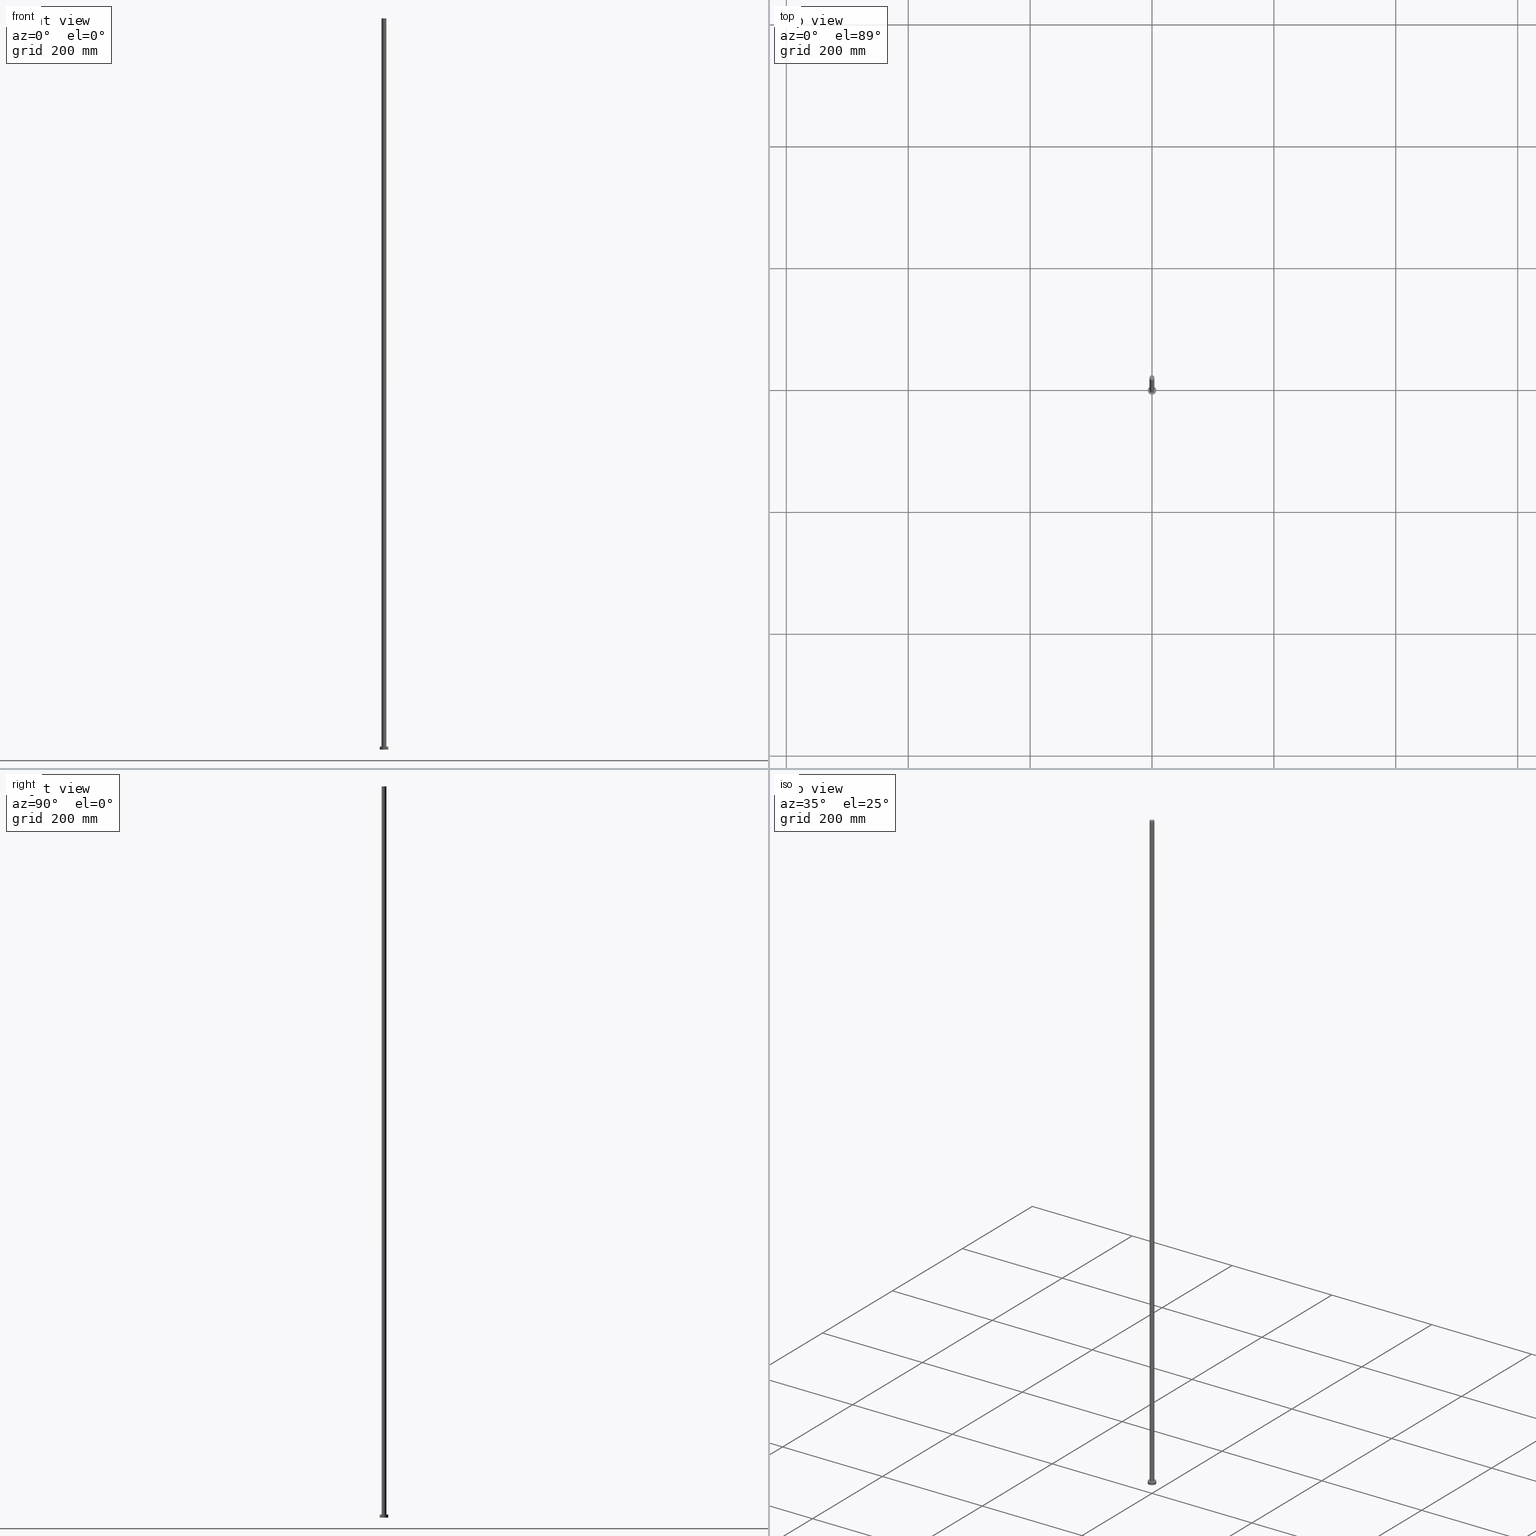
[diagram: canonical four-view strip — front | top / right | iso, engineering-drawing reading convention]
A machine part, canonical four-view strip (front | top / right | iso — engineering-drawing reading convention). The complete STEP part file that produces these views, byte-faithful:
ISO-10303-21;
HEADER;
FILE_DESCRIPTION (( 'STEP AP203' ),
    '1' );
FILE_NAME ('018f.STEP',
    '2023-02-12T11:47:13',
    ( '' ),
    ( '' ),
    'SwSTEP 2.0',
    'SolidWorks 2019',
    '' );
FILE_SCHEMA (( 'CONFIG_CONTROL_DESIGN' ));
ENDSEC;

DATA;
#1 = VERTEX_POINT ( 'NONE', #146 ) ;
#2 = CYLINDRICAL_SURFACE ( 'NONE', #151, 4.000000000000000000 ) ;
#3 = VECTOR ( 'NONE', #177, 1000.000000000000000 ) ;
#4 = CARTESIAN_POINT ( 'NONE',  ( 4.000000000000000000, 4.898587196589412829E-16, 1200.000000000000000 ) ) ;
#5 = CARTESIAN_POINT ( 'NONE',  ( 0.000000000000000000, 0.000000000000000000, 1200.000000000000000 ) ) ;
#6 = CARTESIAN_POINT ( 'NONE',  ( -7.000000000000000000, 0.000000000000000000, 0.000000000000000000 ) ) ;
#7 = ORGANIZATION ( 'NEUR�EN�', 'NEUR�EN�', '' ) ;
#8 = AXIS2_PLACEMENT_3D ( 'NONE', #161, #30, #28 ) ;
#9 = CARTESIAN_POINT ( 'NONE',  ( 0.000000000000000000, 0.000000000000000000, 5.000000000000000000 ) ) ;
#10 = FACE_OUTER_BOUND ( 'NONE', #104, .T. ) ;
#11 = ORIENTED_EDGE ( 'NONE', *, *, #45, .F. ) ;
#12 = CIRCLE ( 'NONE', #93, 4.000000000000000000 ) ;
#13 =( NAMED_UNIT ( * ) PLANE_ANGLE_UNIT ( ) SI_UNIT ( $, .RADIAN. ) );
#14 = EDGE_CURVE ( 'NONE', #201, #118, #83, .T. ) ;
#15 = DATE_TIME_ROLE ( 'creation_date' ) ;
#16 = AXIS2_PLACEMENT_3D ( 'NONE', #159, #199, #124 ) ;
#17 = DATE_AND_TIME ( #207, #35 ) ;
#18 = ORIENTED_EDGE ( 'NONE', *, *, #250, .T. ) ;
#19 = PERSON_AND_ORGANIZATION ( #127, #7 ) ;
#20 = VERTEX_POINT ( 'NONE', #237 ) ;
#21 = CC_DESIGN_SECURITY_CLASSIFICATION ( #60, ( #248 ) ) ;
#22 = PERSON_AND_ORGANIZATION_ROLE ( 'creator' ) ;
#23 = ORIENTED_EDGE ( 'NONE', *, *, #214, .T. ) ;
#24 = APPLICATION_CONTEXT ( 'configuration controlled 3d designs of mechanical parts and assemblies' ) ;
#25 = EDGE_CURVE ( 'NONE', #132, #90, #239, .T. ) ;
#26 = CARTESIAN_POINT ( 'NONE',  ( -7.000000000000000000, 0.000000000000000000, 5.000000000000000000 ) ) ;
#27 = EDGE_CURVE ( 'NONE', #20, #132, #115, .T. ) ;
#28 = DIRECTION ( 'NONE',  ( 1.000000000000000000, 0.000000000000000000, 0.000000000000000000 ) ) ;
#29 = DIRECTION ( 'NONE',  ( 0.000000000000000000, 0.000000000000000000, 1.000000000000000000 ) ) ;
#30 = DIRECTION ( 'NONE',  ( 0.000000000000000000, 0.000000000000000000, 1.000000000000000000 ) ) ;
#31 = DIRECTION ( 'NONE',  ( 1.000000000000000000, 0.000000000000000000, 0.000000000000000000 ) ) ;
#32 =( LENGTH_UNIT ( ) NAMED_UNIT ( * ) SI_UNIT ( .MILLI., .METRE. ) );
#33 = CARTESIAN_POINT ( 'NONE',  ( 0.000000000000000000, 0.000000000000000000, 5.000000000000000000 ) ) ;
#34 = ORIENTED_EDGE ( 'NONE', *, *, #184, .F. ) ;
#35 = LOCAL_TIME ( 12, 47, 13.00000000000000000, #131 ) ;
#36 = DIRECTION ( 'NONE',  ( 0.000000000000000000, 0.000000000000000000, 1.000000000000000000 ) ) ;
#37 = EDGE_CURVE ( 'NONE', #231, #201, #106, .T. ) ;
#38 = AXIS2_PLACEMENT_3D ( 'NONE', #138, #171, #154 ) ;
#39 = EDGE_LOOP ( 'NONE', ( #34, #233, #134, #228 ) ) ;
#40 = COORDINATED_UNIVERSAL_TIME_OFFSET ( 1, 0, .AHEAD. ) ;
#41 = DESIGN_CONTEXT ( 'detailed design', #24, 'design' ) ;
#42 = APPROVAL ( #133, 'NEUR�EN�' ) ;
#43 = FACE_OUTER_BOUND ( 'NONE', #128, .T. ) ;
#44 = FACE_OUTER_BOUND ( 'NONE', #168, .T. ) ;
#45 = EDGE_CURVE ( 'NONE', #118, #201, #165, .T. ) ;
#46 = CARTESIAN_POINT ( 'NONE',  ( -4.000000000000000000, 0.000000000000000000, 5.000000000000000000 ) ) ;
#47 = DIRECTION ( 'NONE',  ( -1.000000000000000000, 0.000000000000000000, 0.000000000000000000 ) ) ;
#48 = ORIENTED_EDGE ( 'NONE', *, *, #25, .T. ) ;
#49 =( GEOMETRIC_REPRESENTATION_CONTEXT ( 3 ) GLOBAL_UNCERTAINTY_ASSIGNED_CONTEXT ( ( #139 ) ) GLOBAL_UNIT_ASSIGNED_CONTEXT ( ( #32, #13, #108 ) ) REPRESENTATION_CONTEXT ( 'NONE', 'WORKASPACE' ) );
#50 = CARTESIAN_POINT ( 'NONE',  ( 7.000000000000000000, 8.572527594031473190E-16, 5.000000000000000000 ) ) ;
#51 = DIRECTION ( 'NONE',  ( 1.000000000000000000, 0.000000000000000000, 0.000000000000000000 ) ) ;
#52 = ORIENTED_EDGE ( 'NONE', *, *, #27, .T. ) ;
#53 = VERTEX_POINT ( 'NONE', #46 ) ;
#54 = CYLINDRICAL_SURFACE ( 'NONE', #198, 7.000000000000000000 ) ;
#55 = APPROVAL_ROLE ( '' ) ;
#56 = CALENDAR_DATE ( 2023, 12, 2 ) ;
#57 = APPROVAL_ROLE ( '' ) ;
#58 = PERSON_AND_ORGANIZATION ( #127, #7 ) ;
#59 = ORIENTED_EDGE ( 'NONE', *, *, #27, .F. ) ;
#60 = SECURITY_CLASSIFICATION ( '', '', #157 ) ;
#61 = DIRECTION ( 'NONE',  ( -0.000000000000000000, -0.000000000000000000, -1.000000000000000000 ) ) ;
#62 = DIRECTION ( 'NONE',  ( 0.000000000000000000, 0.000000000000000000, 1.000000000000000000 ) ) ;
#63 = CARTESIAN_POINT ( 'NONE',  ( 7.000000000000000000, 8.572527594031473190E-16, 5.000000000000000000 ) ) ;
#64 = VECTOR ( 'NONE', #120, 1000.000000000000000 ) ;
#65 = AXIS2_PLACEMENT_3D ( 'NONE', #197, #29, #149 ) ;
#66 = DIRECTION ( 'NONE',  ( 0.000000000000000000, 0.000000000000000000, 1.000000000000000000 ) ) ;
#67 = CARTESIAN_POINT ( 'NONE',  ( 0.000000000000000000, 0.000000000000000000, 0.000000000000000000 ) ) ;
#68 = CLOSED_SHELL ( 'NONE', ( #123, #203, #162, #71, #119, #81, #229 ) ) ;
#69 = DIRECTION ( 'NONE',  ( -1.000000000000000000, 0.000000000000000000, 0.000000000000000000 ) ) ;
#70 = ORIENTED_EDGE ( 'NONE', *, *, #145, .T. ) ;
#71 = ADVANCED_FACE ( 'NONE', ( #103, #182 ), #102, .T. ) ;
#72 = AXIS2_PLACEMENT_3D ( 'NONE', #241, #101, #147 ) ;
#73 = CIRCLE ( 'NONE', #135, 4.000000000000000000 ) ;
#74 = SHAPE_DEFINITION_REPRESENTATION ( #208, #181 ) ;
#75 = ORIENTED_EDGE ( 'NONE', *, *, #145, .F. ) ;
#76 = ORIENTED_EDGE ( 'NONE', *, *, #169, .T. ) ;
#77 = APPROVAL_PERSON_ORGANIZATION ( #19, #42, #57 ) ;
#78 = APPROVAL_DATE_TIME ( #255, #42 ) ;
#79 = CC_DESIGN_PERSON_AND_ORGANIZATION_ASSIGNMENT ( #190, #194, ( #252 ) ) ;
#80 = CALENDAR_DATE ( 2023, 12, 2 ) ;
#81 = ADVANCED_FACE ( 'NONE', ( #44 ), #217, .T. ) ;
#82 = DIRECTION ( 'NONE',  ( -0.000000000000000000, -0.000000000000000000, -1.000000000000000000 ) ) ;
#83 = CIRCLE ( 'NONE', #191, 7.000000000000000000 ) ;
#84 = LOCAL_TIME ( 12, 47, 13.00000000000000000, #98 ) ;
#85 = DIRECTION ( 'NONE',  ( 1.000000000000000000, 0.000000000000000000, 0.000000000000000000 ) ) ;
#86 = PLANE ( 'NONE',  #216 ) ;
#87 = CARTESIAN_POINT ( 'NONE',  ( 4.000000000000000000, 4.898587196589412829E-16, 5.000000000000000000 ) ) ;
#88 = APPROVAL ( #117, 'NEUR�EN�' ) ;
#89 = CIRCLE ( 'NONE', #225, 7.000000000000000000 ) ;
#90 = VERTEX_POINT ( 'NONE', #87 ) ;
#91 = PLANE ( 'NONE',  #107 ) ;
#92 = APPROVAL_DATE_TIME ( #17, #224 ) ;
#93 = AXIS2_PLACEMENT_3D ( 'NONE', #246, #112, #31 ) ;
#94 = CC_DESIGN_PERSON_AND_ORGANIZATION_ASSIGNMENT ( #174, #209, ( #248 ) ) ;
#95 = DATE_AND_TIME ( #80, #254 ) ;
#96 = PERSON_AND_ORGANIZATION ( #127, #7 ) ;
#97 = EDGE_LOOP ( 'NONE', ( #227, #48, #23, #75 ) ) ;
#98 = COORDINATED_UNIVERSAL_TIME_OFFSET ( 1, 0, .AHEAD. ) ;
#99 = EDGE_CURVE ( 'NONE', #1, #118, #220, .T. ) ;
#100 = COORDINATED_UNIVERSAL_TIME_OFFSET ( 1, 0, .AHEAD. ) ;
#101 = DIRECTION ( 'NONE',  ( 0.000000000000000000, 0.000000000000000000, 1.000000000000000000 ) ) ;
#102 = PLANE ( 'NONE',  #236 ) ;
#103 = FACE_BOUND ( 'NONE', #253, .T. ) ;
#104 = EDGE_LOOP ( 'NONE', ( #52, #18 ) ) ;
#105 = CC_DESIGN_DATE_AND_TIME_ASSIGNMENT ( #113, #15, ( #150 ) ) ;
#106 = LINE ( 'NONE', #63, #240 ) ;
#107 = AXIS2_PLACEMENT_3D ( 'NONE', #188, #130, #202 ) ;
#108 =( NAMED_UNIT ( * ) SI_UNIT ( $, .STERADIAN. ) SOLID_ANGLE_UNIT ( ) );
#109 = ORIENTED_EDGE ( 'NONE', *, *, #37, .F. ) ;
#110 = CARTESIAN_POINT ( 'NONE',  ( 7.000000000000000000, 8.572527594031473190E-16, 0.000000000000000000 ) ) ;
#111 = CC_DESIGN_APPROVAL ( #42, ( #248 ) ) ;
#112 = DIRECTION ( 'NONE',  ( 0.000000000000000000, 0.000000000000000000, 1.000000000000000000 ) ) ;
#113 = DATE_AND_TIME ( #56, #167 ) ;
#114 = CC_DESIGN_DATE_AND_TIME_ASSIGNMENT ( #95, #172, ( #60 ) ) ;
#115 = CIRCLE ( 'NONE', #72, 4.000000000000000000 ) ;
#116 = EDGE_LOOP ( 'NONE', ( #109, #140, #148, #126 ) ) ;
#117 = APPROVAL_STATUS ( 'not_yet_approved' ) ;
#118 = VERTEX_POINT ( 'NONE', #6 ) ;
#119 = ADVANCED_FACE ( 'NONE', ( #43 ), #86, .F. ) ;
#120 = DIRECTION ( 'NONE',  ( -0.000000000000000000, -0.000000000000000000, -1.000000000000000000 ) ) ;
#121 = DIRECTION ( 'NONE',  ( -1.000000000000000000, 0.000000000000000000, 0.000000000000000000 ) ) ;
#122 = DIRECTION ( 'NONE',  ( 1.000000000000000000, 0.000000000000000000, 0.000000000000000000 ) ) ;
#123 = ADVANCED_FACE ( 'NONE', ( #166 ), #2, .T. ) ;
#124 = DIRECTION ( 'NONE',  ( -1.000000000000000000, 0.000000000000000000, 0.000000000000000000 ) ) ;
#125 = PRODUCT_RELATED_PRODUCT_CATEGORY ( 'detail', '', ( #252 ) ) ;
#126 = ORIENTED_EDGE ( 'NONE', *, *, #45, .T. ) ;
#127 = PERSON ( 'NEUR�EN�', 'NEUR�EN�', 'NEUR�EN�', ('NEUR�EN�'), ('NEUR�EN�'), ('NEUR�EN�') ) ;
#128 = EDGE_LOOP ( 'NONE', ( #11, #247 ) ) ;
#129 = CC_DESIGN_APPROVAL ( #224, ( #60 ) ) ;
#130 = DIRECTION ( 'NONE',  ( 0.000000000000000000, 0.000000000000000000, 1.000000000000000000 ) ) ;
#131 = COORDINATED_UNIVERSAL_TIME_OFFSET ( 1, 0, .AHEAD. ) ;
#132 = VERTEX_POINT ( 'NONE', #4 ) ;
#133 = APPROVAL_STATUS ( 'not_yet_approved' ) ;
#134 = ORIENTED_EDGE ( 'NONE', *, *, #14, .T. ) ;
#135 = AXIS2_PLACEMENT_3D ( 'NONE', #33, #36, #185 ) ;
#136 = EDGE_LOOP ( 'NONE', ( #163, #186 ) ) ;
#137 = APPROVAL_DATE_TIME ( #195, #88 ) ;
#138 = CARTESIAN_POINT ( 'NONE',  ( 0.000000000000000000, 0.000000000000000000, 0.000000000000000000 ) ) ;
#139 = UNCERTAINTY_MEASURE_WITH_UNIT (LENGTH_MEASURE( 1.000000000000000082E-05 ), #32, 'distance_accuracy_value', 'NONE');
#140 = ORIENTED_EDGE ( 'NONE', *, *, #142, .F. ) ;
#141 = DIRECTION ( 'NONE',  ( 0.000000000000000000, 0.000000000000000000, 1.000000000000000000 ) ) ;
#142 = EDGE_CURVE ( 'NONE', #1, #231, #212, .T. ) ;
#143 = CARTESIAN_POINT ( 'NONE',  ( 0.000000000000000000, 0.000000000000000000, 5.000000000000000000 ) ) ;
#144 = CARTESIAN_POINT ( 'NONE',  ( 0.000000000000000000, 0.000000000000000000, 5.000000000000000000 ) ) ;
#145 = EDGE_CURVE ( 'NONE', #20, #53, #160, .T. ) ;
#146 = CARTESIAN_POINT ( 'NONE',  ( -7.000000000000000000, 0.000000000000000000, 5.000000000000000000 ) ) ;
#147 = DIRECTION ( 'NONE',  ( 1.000000000000000000, 0.000000000000000000, 0.000000000000000000 ) ) ;
#148 = ORIENTED_EDGE ( 'NONE', *, *, #99, .T. ) ;
#149 = DIRECTION ( 'NONE',  ( 1.000000000000000000, 0.000000000000000000, 0.000000000000000000 ) ) ;
#150 = PRODUCT_DEFINITION ( 'NEZN�M�', '', #248, #41 ) ;
#151 = AXIS2_PLACEMENT_3D ( 'NONE', #5, #82, #47 ) ;
#152 = MECHANICAL_CONTEXT ( 'NONE', #206, 'mechanical' ) ;
#153 = ORIENTED_EDGE ( 'NONE', *, *, #25, .F. ) ;
#154 = DIRECTION ( 'NONE',  ( 1.000000000000000000, 0.000000000000000000, 0.000000000000000000 ) ) ;
#155 = CC_DESIGN_PERSON_AND_ORGANIZATION_ASSIGNMENT ( #96, #22, ( #248 ) ) ;
#156 = CC_DESIGN_APPROVAL ( #88, ( #150 ) ) ;
#157 = SECURITY_CLASSIFICATION_LEVEL ( 'unclassified' ) ;
#158 = PERSON_AND_ORGANIZATION ( #127, #7 ) ;
#159 = CARTESIAN_POINT ( 'NONE',  ( 0.000000000000000000, 0.000000000000000000, 1200.000000000000000 ) ) ;
#160 = LINE ( 'NONE', #238, #243 ) ;
#161 = CARTESIAN_POINT ( 'NONE',  ( 0.000000000000000000, 0.000000000000000000, 0.000000000000000000 ) ) ;
#162 = ADVANCED_FACE ( 'NONE', ( #242 ), #213, .T. ) ;
#163 = ORIENTED_EDGE ( 'NONE', *, *, #142, .T. ) ;
#164 = APPROVAL_PERSON_ORGANIZATION ( #158, #224, #234 ) ;
#165 = CIRCLE ( 'NONE', #8, 7.000000000000000000 ) ;
#166 = FACE_OUTER_BOUND ( 'NONE', #97, .T. ) ;
#167 = LOCAL_TIME ( 12, 47, 13.00000000000000000, #100 ) ;
#168 = EDGE_LOOP ( 'NONE', ( #153, #59, #70, #76 ) ) ;
#169 = EDGE_CURVE ( 'NONE', #53, #90, #204, .T. ) ;
#170 = ORIENTED_EDGE ( 'NONE', *, *, #214, .F. ) ;
#171 = DIRECTION ( 'NONE',  ( 0.000000000000000000, 0.000000000000000000, 1.000000000000000000 ) ) ;
#172 = DATE_TIME_ROLE ( 'classification_date' ) ;
#173 = CC_DESIGN_PERSON_AND_ORGANIZATION_ASSIGNMENT ( #58, #192, ( #60 ) ) ;
#174 = PERSON_AND_ORGANIZATION ( #127, #7 ) ;
#175 = CALENDAR_DATE ( 2023, 12, 2 ) ;
#176 = COORDINATED_UNIVERSAL_TIME_OFFSET ( 1, 0, .AHEAD. ) ;
#177 = DIRECTION ( 'NONE',  ( -0.000000000000000000, -0.000000000000000000, -1.000000000000000000 ) ) ;
#178 = AXIS2_PLACEMENT_3D ( 'NONE', #9, #141, #122 ) ;
#179 = CARTESIAN_POINT ( 'NONE',  ( 0.000000000000000000, 0.000000000000000000, 0.000000000000000000 ) ) ;
#180 = DIRECTION ( 'NONE',  ( 0.000000000000000000, 0.000000000000000000, 1.000000000000000000 ) ) ;
#181 = ADVANCED_BREP_SHAPE_REPRESENTATION ( '018f', ( #189, #38 ), #49 ) ;
#182 = FACE_OUTER_BOUND ( 'NONE', #136, .T. ) ;
#183 = DIRECTION ( 'NONE',  ( 1.000000000000000000, 0.000000000000000000, -0.000000000000000000 ) ) ;
#184 = EDGE_CURVE ( 'NONE', #231, #1, #89, .T. ) ;
#185 = DIRECTION ( 'NONE',  ( 1.000000000000000000, 0.000000000000000000, 0.000000000000000000 ) ) ;
#186 = ORIENTED_EDGE ( 'NONE', *, *, #184, .T. ) ;
#187 = AXIS2_PLACEMENT_3D ( 'NONE', #143, #215, #121 ) ;
#188 = CARTESIAN_POINT ( 'NONE',  ( 0.000000000000000000, 0.000000000000000000, 1200.000000000000000 ) ) ;
#189 = MANIFOLD_SOLID_BREP ( 'P�idat vysunut�m3', #68 ) ;
#190 = PERSON_AND_ORGANIZATION ( #127, #7 ) ;
#191 = AXIS2_PLACEMENT_3D ( 'NONE', #67, #62, #85 ) ;
#192 = PERSON_AND_ORGANIZATION_ROLE ( 'classification_officer' ) ;
#193 = CALENDAR_DATE ( 2023, 12, 2 ) ;
#194 = PERSON_AND_ORGANIZATION_ROLE ( 'design_owner' ) ;
#195 = DATE_AND_TIME ( #193, #84 ) ;
#196 = CARTESIAN_POINT ( 'NONE',  ( 4.000000000000000000, 4.898587196589412829E-16, 1200.000000000000000 ) ) ;
#197 = CARTESIAN_POINT ( 'NONE',  ( 0.000000000000000000, 0.000000000000000000, 5.000000000000000000 ) ) ;
#198 = AXIS2_PLACEMENT_3D ( 'NONE', #223, #226, #69 ) ;
#199 = DIRECTION ( 'NONE',  ( -0.000000000000000000, -0.000000000000000000, -1.000000000000000000 ) ) ;
#200 = DIRECTION ( 'NONE',  ( -0.000000000000000000, -0.000000000000000000, -1.000000000000000000 ) ) ;
#201 = VERTEX_POINT ( 'NONE', #110 ) ;
#202 = DIRECTION ( 'NONE',  ( 1.000000000000000000, 0.000000000000000000, -0.000000000000000000 ) ) ;
#203 = ADVANCED_FACE ( 'NONE', ( #205 ), #54, .T. ) ;
#204 = CIRCLE ( 'NONE', #65, 4.000000000000000000 ) ;
#205 = FACE_OUTER_BOUND ( 'NONE', #39, .T. ) ;
#206 = APPLICATION_CONTEXT ( 'configuration controlled 3d designs of mechanical parts and assemblies' ) ;
#207 = CALENDAR_DATE ( 2023, 12, 2 ) ;
#208 = PRODUCT_DEFINITION_SHAPE ( 'NONE', 'NONE',  #150 ) ;
#209 = PERSON_AND_ORGANIZATION_ROLE ( 'design_supplier' ) ;
#210 = PERSON_AND_ORGANIZATION_ROLE ( 'creator' ) ;
#211 = PERSON_AND_ORGANIZATION ( #127, #7 ) ;
#212 = CIRCLE ( 'NONE', #178, 7.000000000000000000 ) ;
#213 = CYLINDRICAL_SURFACE ( 'NONE', #187, 7.000000000000000000 ) ;
#214 = EDGE_CURVE ( 'NONE', #90, #53, #73, .T. ) ;
#215 = DIRECTION ( 'NONE',  ( -0.000000000000000000, -0.000000000000000000, -1.000000000000000000 ) ) ;
#216 = AXIS2_PLACEMENT_3D ( 'NONE', #179, #66, #219 ) ;
#217 = CYLINDRICAL_SURFACE ( 'NONE', #16, 4.000000000000000000 ) ;
#218 = LOCAL_TIME ( 12, 47, 13.00000000000000000, #40 ) ;
#219 = DIRECTION ( 'NONE',  ( 1.000000000000000000, 0.000000000000000000, -0.000000000000000000 ) ) ;
#220 = LINE ( 'NONE', #26, #3 ) ;
#221 = CARTESIAN_POINT ( 'NONE',  ( 0.000000000000000000, 0.000000000000000000, 5.000000000000000000 ) ) ;
#222 = APPROVAL_PERSON_ORGANIZATION ( #211, #88, #55 ) ;
#223 = CARTESIAN_POINT ( 'NONE',  ( 0.000000000000000000, 0.000000000000000000, 5.000000000000000000 ) ) ;
#224 = APPROVAL ( #251, 'NEUR�EN�' ) ;
#225 = AXIS2_PLACEMENT_3D ( 'NONE', #221, #245, #51 ) ;
#226 = DIRECTION ( 'NONE',  ( -0.000000000000000000, -0.000000000000000000, -1.000000000000000000 ) ) ;
#227 = ORIENTED_EDGE ( 'NONE', *, *, #250, .F. ) ;
#228 = ORIENTED_EDGE ( 'NONE', *, *, #99, .F. ) ;
#229 = ADVANCED_FACE ( 'NONE', ( #10 ), #91, .T. ) ;
#230 = PERSON_AND_ORGANIZATION ( #127, #7 ) ;
#231 = VERTEX_POINT ( 'NONE', #50 ) ;
#232 = APPLICATION_PROTOCOL_DEFINITION ( 'international standard', 'config_control_design', 1994, #24 ) ;
#233 = ORIENTED_EDGE ( 'NONE', *, *, #37, .T. ) ;
#234 = APPROVAL_ROLE ( '' ) ;
#235 = ORIENTED_EDGE ( 'NONE', *, *, #169, .F. ) ;
#236 = AXIS2_PLACEMENT_3D ( 'NONE', #144, #180, #183 ) ;
#237 = CARTESIAN_POINT ( 'NONE',  ( -4.000000000000000000, 0.000000000000000000, 1200.000000000000000 ) ) ;
#238 = CARTESIAN_POINT ( 'NONE',  ( -4.000000000000000000, 0.000000000000000000, 1200.000000000000000 ) ) ;
#239 = LINE ( 'NONE', #196, #64 ) ;
#240 = VECTOR ( 'NONE', #61, 1000.000000000000000 ) ;
#241 = CARTESIAN_POINT ( 'NONE',  ( 0.000000000000000000, 0.000000000000000000, 1200.000000000000000 ) ) ;
#242 = FACE_OUTER_BOUND ( 'NONE', #116, .T. ) ;
#243 = VECTOR ( 'NONE', #200, 1000.000000000000000 ) ;
#244 = CC_DESIGN_PERSON_AND_ORGANIZATION_ASSIGNMENT ( #230, #210, ( #150 ) ) ;
#245 = DIRECTION ( 'NONE',  ( 0.000000000000000000, 0.000000000000000000, 1.000000000000000000 ) ) ;
#246 = CARTESIAN_POINT ( 'NONE',  ( 0.000000000000000000, 0.000000000000000000, 1200.000000000000000 ) ) ;
#247 = ORIENTED_EDGE ( 'NONE', *, *, #14, .F. ) ;
#248 = PRODUCT_DEFINITION_FORMATION_WITH_SPECIFIED_SOURCE ( 'LIBOVOLN�', '', #252, .NOT_KNOWN. ) ;
#249 = APPLICATION_PROTOCOL_DEFINITION ( 'international standard', 'config_control_design', 1994, #206 ) ;
#250 = EDGE_CURVE ( 'NONE', #132, #20, #12, .T. ) ;
#251 = APPROVAL_STATUS ( 'not_yet_approved' ) ;
#252 = PRODUCT ( '018f', '018f', '', ( #152 ) ) ;
#253 = EDGE_LOOP ( 'NONE', ( #235, #170 ) ) ;
#254 = LOCAL_TIME ( 12, 47, 13.00000000000000000, #176 ) ;
#255 = DATE_AND_TIME ( #175, #218 ) ;
ENDSEC;
END-ISO-10303-21;
